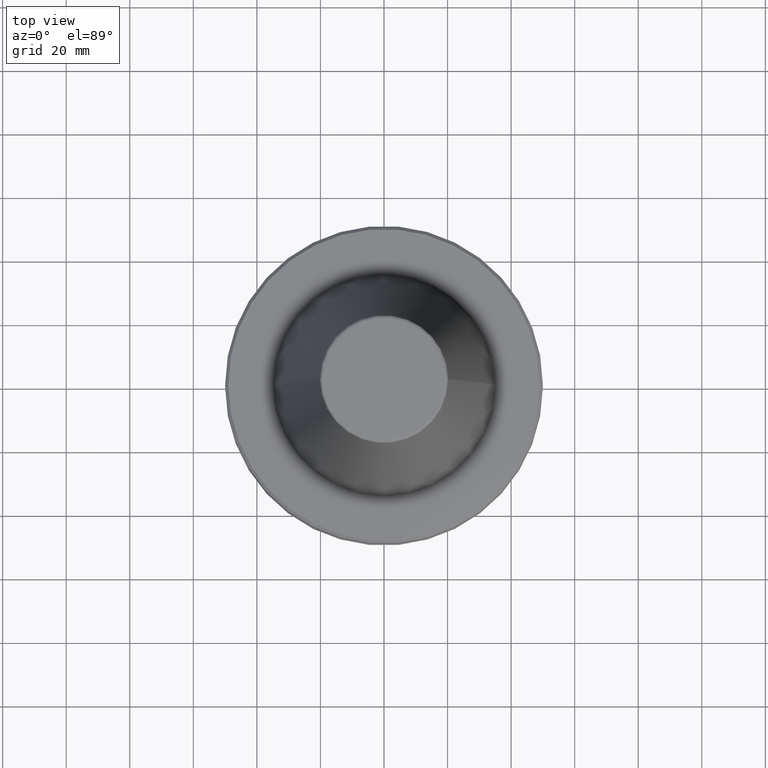
[diagram: clean part render]
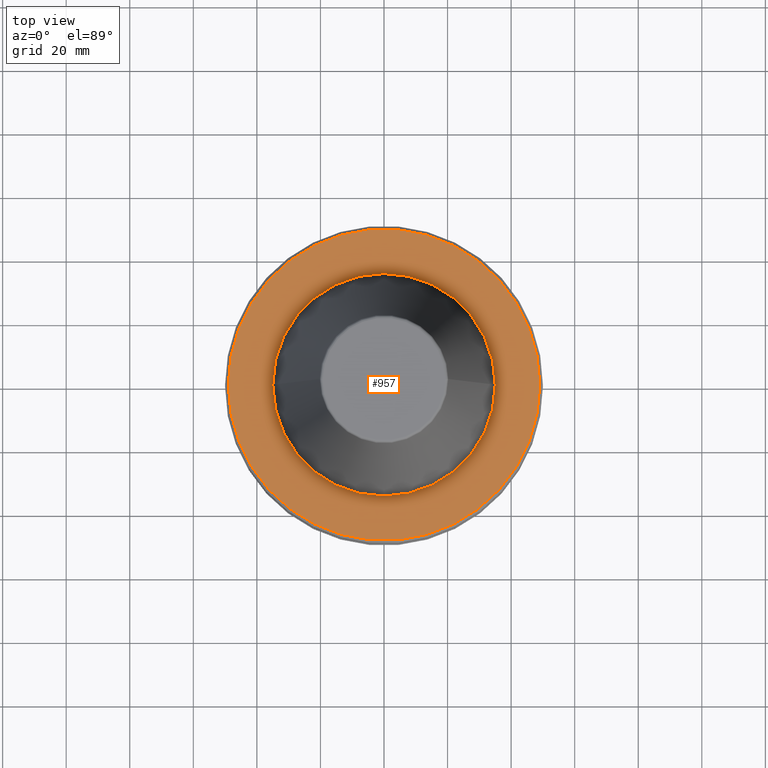
[diagram: same view with one face highlighted and labeled with its STEP entity id]
A machine part, top view. The second image highlights one B-rep face of the part: STEP entity #957.
In plain terms, the highlighted planar face has unit normal (0, 0, -1).
Its self-contained STEP definition (entity closure, byte-faithful):
#8 = CIRCLE ( 'NONE', #641, 35.00000000000014200 ) ;
#37 = DIRECTION ( 'NONE',  ( -0.0000000000000000000, -0.0000000000000000000, 1.000000000000000000 ) ) ;
#45 = VERTEX_POINT ( 'NONE', #299 ) ;
#114 = CARTESIAN_POINT ( 'NONE',  ( 0.0000000000000000000, 0.0000000000000000000, -3.000000000000058200 ) ) ;
#117 = CARTESIAN_POINT ( 'NONE',  ( 0.0000000000000000000, 49.00000000000026300, -3.000000000000058200 ) ) ;
#176 = EDGE_CURVE ( 'NONE', #378, #45, #850, .T. ) ;
#190 = DIRECTION ( 'NONE',  ( -0.0000000000000000000, -0.0000000000000000000, 1.000000000000000000 ) ) ;
#216 = DIRECTION ( 'NONE',  ( 1.000000000000000000, 0.0000000000000000000, 0.0000000000000000000 ) ) ;
#270 = FACE_OUTER_BOUND ( 'NONE', #1140, .T. ) ;
#299 = CARTESIAN_POINT ( 'NONE',  ( -49.00000000000026300, 0.0000000000000000000, -3.000000000000058200 ) ) ;
#331 = FACE_BOUND ( 'NONE', #781, .T. ) ;
#378 = VERTEX_POINT ( 'NONE', #1100 ) ;
#413 = DIRECTION ( 'NONE',  ( -1.000000000000000000, 0.0000000000000000000, -0.0000000000000000000 ) ) ;
#430 = EDGE_CURVE ( 'NONE', #717, #981, #8, .T. ) ;
#505 = PLANE ( 'NONE',  #685 ) ;
#573 = ORIENTED_EDGE ( 'NONE', *, *, #430, .F. ) ;
#602 = DIRECTION ( 'NONE',  ( 1.000000000000000000, 0.0000000000000000000, 0.0000000000000000000 ) ) ;
#618 = ORIENTED_EDGE ( 'NONE', *, *, #770, .T. ) ;
#641 = AXIS2_PLACEMENT_3D ( 'NONE', #978, #952, #736 ) ;
#657 = AXIS2_PLACEMENT_3D ( 'NONE', #887, #37, #602 ) ;
#683 = ORIENTED_EDGE ( 'NONE', *, *, #926, .F. ) ;
#685 = AXIS2_PLACEMENT_3D ( 'NONE', #117, #977, #413 ) ;
#717 = VERTEX_POINT ( 'NONE', #905 ) ;
#736 = DIRECTION ( 'NONE',  ( 1.000000000000000000, 0.0000000000000000000, 0.0000000000000000000 ) ) ;
#760 = AXIS2_PLACEMENT_3D ( 'NONE', #764, #190, #852 ) ;
#764 = CARTESIAN_POINT ( 'NONE',  ( 0.0000000000000000000, 0.0000000000000000000, -3.000000000000058200 ) ) ;
#770 = EDGE_CURVE ( 'NONE', #45, #378, #922, .T. ) ;
#781 = EDGE_LOOP ( 'NONE', ( #683, #573 ) ) ;
#791 = DIRECTION ( 'NONE',  ( -0.0000000000000000000, -0.0000000000000000000, 1.000000000000000000 ) ) ;
#850 = CIRCLE ( 'NONE', #657, 49.00000000000026300 ) ;
#852 = DIRECTION ( 'NONE',  ( 1.000000000000000000, 0.0000000000000000000, 0.0000000000000000000 ) ) ;
#887 = CARTESIAN_POINT ( 'NONE',  ( 0.0000000000000000000, 0.0000000000000000000, -3.000000000000058200 ) ) ;
#905 = CARTESIAN_POINT ( 'NONE',  ( -35.00000000000014200, 4.286263797015753900E-015, -3.000000000000183000 ) ) ;
#922 = CIRCLE ( 'NONE', #760, 49.00000000000026300 ) ;
#926 = EDGE_CURVE ( 'NONE', #981, #717, #1052, .T. ) ;
#952 = DIRECTION ( 'NONE',  ( -0.0000000000000000000, -0.0000000000000000000, 1.000000000000000000 ) ) ;
#957 = ADVANCED_FACE ( 'NONE', ( #331, #270 ), #505, .F. ) ;
#977 = DIRECTION ( 'NONE',  ( 0.0000000000000000000, 0.0000000000000000000, -1.000000000000000000 ) ) ;
#978 = CARTESIAN_POINT ( 'NONE',  ( 0.0000000000000000000, 0.0000000000000000000, -3.000000000000058200 ) ) ;
#981 = VERTEX_POINT ( 'NONE', #1074 ) ;
#1044 = AXIS2_PLACEMENT_3D ( 'NONE', #114, #791, #216 ) ;
#1052 = CIRCLE ( 'NONE', #1044, 35.00000000000014200 ) ;
#1074 = CARTESIAN_POINT ( 'NONE',  ( 35.00000000000014200, 0.0000000000000000000, -3.000000000000183000 ) ) ;
#1100 = CARTESIAN_POINT ( 'NONE',  ( 49.00000000000026300, 6.062001655779430900E-015, -3.000000000000058200 ) ) ;
#1140 = EDGE_LOOP ( 'NONE', ( #618, #1213 ) ) ;
#1213 = ORIENTED_EDGE ( 'NONE', *, *, #176, .T. ) ;